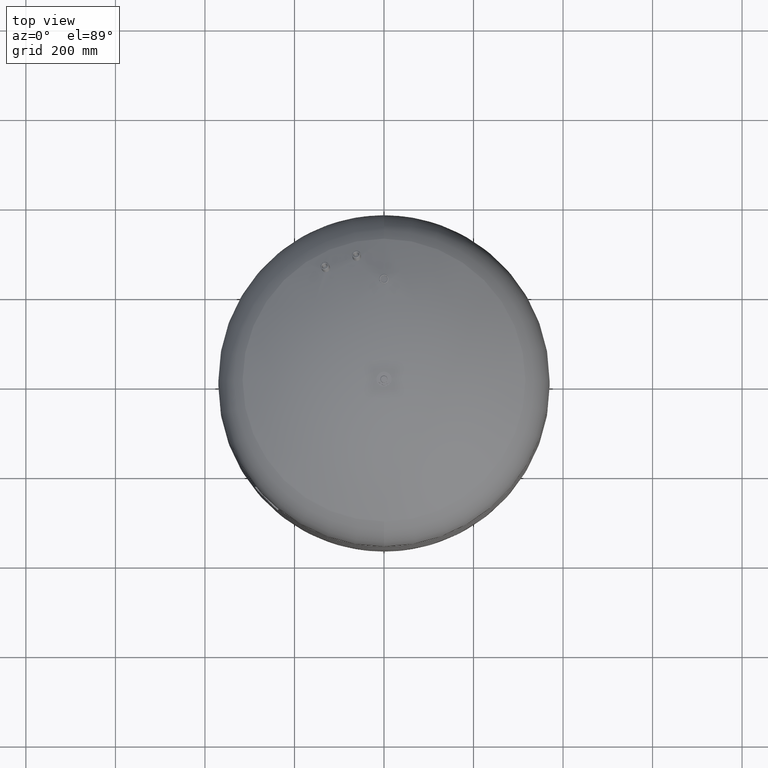
[diagram: clean part render]
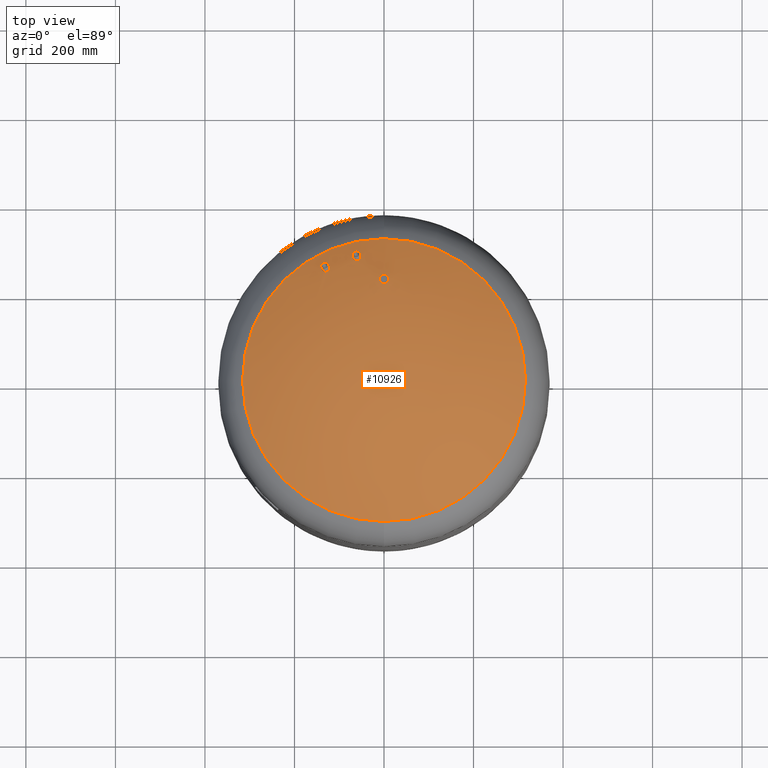
[diagram: same view with one face highlighted and labeled with its STEP entity id]
A machine part, top view. The second image highlights one B-rep face of the part: STEP entity #10926.
In plain terms, the highlighted spherical surface has radius 594 mm.
Its self-contained STEP definition (entity closure, byte-faithful):
#10110=CARTESIAN_POINT('',(-2.602824E-014,235.650000000000180,1171.256891290701600));
#10111=VERTEX_POINT('',#10110);
#10127=CARTESIAN_POINT('',(-3.249803E-014,214.350000000000160,1179.976603747847800));
#10128=VERTEX_POINT('',#10127);
#10135=CARTESIAN_POINT('',(-3.249803E-014,214.350000000000160,1179.976603747847800));
#10136=CARTESIAN_POINT('',(0.666038043721410,214.350000000000160,1179.976603747847800));
#10137=CARTESIAN_POINT('',(1.352981525517916,214.413524354886020,1179.950805071053100));
#10138=CARTESIAN_POINT('',(2.715272904608481,214.678598997980660,1179.843128376147000));
#10139=CARTESIAN_POINT('',(3.390634926952958,214.880086805006700,1179.761275260714000));
#10140=CARTESIAN_POINT('',(4.681630125253175,215.408785958660050,1179.546416626549900));
#10141=CARTESIAN_POINT('',(5.298427974080205,215.736445102668090,1179.413227623191500));
#10142=CARTESIAN_POINT('',(6.435759363091345,216.487198478308700,1179.107911251760500));
#10143=CARTESIAN_POINT('',(6.956285137066915,216.910302070195940,1178.935777970266600));
#10144=CARTESIAN_POINT('',(7.916960179157471,217.842409028087250,1178.556361428415100));
#10145=CARTESIAN_POINT('',(8.381739947968098,218.390323388397350,1178.333224298921800));
#10146=CARTESIAN_POINT('',(9.195451719827602,219.579201430897460,1177.848707115749900));
#10147=CARTESIAN_POINT('',(9.544466567579486,220.220115776826730,1177.587345140520000));
#10148=CARTESIAN_POINT('',(10.102417011131195,221.552493042210590,1177.043582261240300));
#10149=CARTESIAN_POINT('',(10.311753669868759,222.244873077360270,1176.760805702338500));
#10150=CARTESIAN_POINT('',(10.585573976371812,223.633028276844750,1176.193416225719600));
#10151=CARTESIAN_POINT('',(10.649999999999977,224.328813015859680,1175.908798925370500));
#10152=CARTESIAN_POINT('',(10.649999999999975,225.671786479226000,1175.359034886973600));
#10153=CARTESIAN_POINT('',(10.585460400361917,226.368024347549920,1175.073808877052400));
#10154=CARTESIAN_POINT('',(10.311329103602359,227.756801518715060,1174.504419187062000));
#10155=CARTESIAN_POINT('',(10.101797465229037,228.449351105819910,1174.220251677453700));
#10156=CARTESIAN_POINT('',(9.543479918171299,229.781874594479230,1173.673085682405800));
#10157=CARTESIAN_POINT('',(9.194296297222152,230.422762135664810,1173.409713356434200));
#10158=CARTESIAN_POINT('',(8.380292790655219,231.611514676519110,1172.920886082800300));
#10159=CARTESIAN_POINT('',(7.915389535509958,232.159331565944850,1172.695452971786800));
#10160=CARTESIAN_POINT('',(6.954812378860631,233.090927368555900,1172.311901637632900));
#10161=CARTESIAN_POINT('',(6.434542270618381,233.513694356713440,1172.137747219150700));
#10162=CARTESIAN_POINT('',(5.297695199627204,234.263949017529820,1171.828566804858600));
#10163=CARTESIAN_POINT('',(4.681124878051838,234.591446061424450,1171.693539129926400));
#10164=CARTESIAN_POINT('',(3.390484354499036,235.119949738899090,1171.475583316135300));
#10165=CARTESIAN_POINT('',(2.715246130797892,235.321404190540730,1171.392472082369500));
#10166=CARTESIAN_POINT('',(1.353068081394607,235.586460824110730,1171.283112812980600));
#10167=CARTESIAN_POINT('',(0.666113868125016,235.650000000000180,1171.256891290701600));
#10168=CARTESIAN_POINT('',(-2.602824E-014,235.650000000000180,1171.256891290701600));
#10169=B_SPLINE_CURVE_WITH_KNOTS('',3,(#10135,#10136,#10137,#10138,#10139,#10140,#10141,#10142,#10143,#10144,#10145,#10146,#10147,#10148,#10149,#10150,#10151,#10152,#10153,#10154,#10155,#10156,#10157,#10158,#10159,#10160,#10161,#10162,#10163,#10164,#10165,#10166,#10167,#10168),.UNSPECIFIED.,.F.,.U.,(4,2,2,2,2,2,2,2,2,2,2,2,2,2,2,2,4),(33.399548099509303,35.397662230673632,37.395776361837967,39.393890493002303,41.392004624166631,43.567748596373889,45.743492568581139,47.919236540788390,50.094980512995647,52.272667830126260,54.450355147256872,56.628042464387491,58.805729781518103,60.804071385893224,62.802412990268351,64.800754594643479,66.799096199018607),.UNSPECIFIED.);
#10170=EDGE_CURVE('',#10128,#10111,#10169,.T.);
#10324=CARTESIAN_POINT('',(-129.243551924768920,257.524553273751340,1145.435471206024200));
#10325=VERTEX_POINT('',#10324);
#10341=CARTESIAN_POINT('',(-130.137349046490210,240.741521569716100,1153.203746359460200));
#10342=VERTEX_POINT('',#10341);
#10349=CARTESIAN_POINT('',(-130.137349046490210,240.741521569716100,1153.203746359460200));
#10350=CARTESIAN_POINT('',(-129.571386774364560,240.769566917004080,1153.330644452726100));
#10351=CARTESIAN_POINT('',(-128.983368624156180,240.848956547617890,1153.438566269858300));
#10352=CARTESIAN_POINT('',(-127.807631295279950,241.118935185915090,1153.601401550465200));
#10353=CARTESIAN_POINT('',(-127.219905058204020,241.309479578009960,1153.656338017429100));
#10354=CARTESIAN_POINT('',(-126.086363301858470,241.792593358846600,1153.707258821884100));
#10355=CARTESIAN_POINT('',(-125.539642565455280,242.085548611231450,1153.703283797784900));
#10356=CARTESIAN_POINT('',(-124.522014237761940,242.750400108272570,1153.638969040643100));
#10357=CARTESIAN_POINT('',(-124.051132232967380,243.122333203697560,1153.578605415600800));
#10358=CARTESIAN_POINT('',(-123.210600896812420,243.907122624122680,1153.413311371378300));
#10359=CARTESIAN_POINT('',(-122.812319327467660,244.346801409583460,1153.302707925460300));
#10360=CARTESIAN_POINT('',(-122.101095121742960,245.296425052045320,1153.026903819878000));
#10361=CARTESIAN_POINT('',(-121.788112285879660,245.806345995712090,1152.861724489986000));
#10362=CARTESIAN_POINT('',(-121.272868172967250,246.863070067758030,1152.486369092597700));
#10363=CARTESIAN_POINT('',(-121.070195937609000,247.410715286423600,1152.275893979412600));
#10364=CARTESIAN_POINT('',(-120.784318141678130,248.505806093199880,1151.825430913872400));
#10365=CARTESIAN_POINT('',(-120.701160539569060,249.053258054910090,1151.585428021449600));
#10366=CARTESIAN_POINT('',(-120.645048880344060,250.106955699581420,1151.097725076235700));
#10367=CARTESIAN_POINT('',(-120.670229904334580,250.649211513011350,1150.833344722289000));
#10368=CARTESIAN_POINT('',(-120.840789002522460,251.721871315924860,1150.280435038444900));
#10369=CARTESIAN_POINT('',(-120.986117486582800,252.252286717004520,1149.991912551202900));
#10370=CARTESIAN_POINT('',(-121.391321718333760,253.263320454263780,1149.410182095705300));
#10371=CARTESIAN_POINT('',(-121.651519210126610,253.744741707722800,1149.116512152680100));
#10372=CARTESIAN_POINT('',(-122.265024945730990,254.628476341610370,1148.543753257280500));
#10373=CARTESIAN_POINT('',(-122.618376009204780,255.030761752403690,1148.264667016394200));
#10374=CARTESIAN_POINT('',(-123.379272435740210,255.735907670427080,1147.740393491655400));
#10375=CARTESIAN_POINT('',(-123.812782571223150,256.062928762060040,1147.477269161481700));
#10376=CARTESIAN_POINT('',(-124.764552987364750,256.630088900802600,1146.971376041888100));
#10377=CARTESIAN_POINT('',(-125.282783676294060,256.870267406416930,1146.728595818036000));
#10378=CARTESIAN_POINT('',(-126.370651287798070,257.243350340047240,1146.281364133556300));
#10379=CARTESIAN_POINT('',(-126.941154008583540,257.376551332503140,1146.076556928055900));
#10380=CARTESIAN_POINT('',(-128.094477587199070,257.531209120771900,1145.717088388904800));
#10381=CARTESIAN_POINT('',(-128.677310565932770,257.552619713672190,1145.562446067612000));
#10382=CARTESIAN_POINT('',(-129.243551924768950,257.524553273751390,1145.435471206024200));
#10383=B_SPLINE_CURVE_WITH_KNOTS('',3,(#10349,#10350,#10351,#10352,#10353,#10354,#10355,#10356,#10357,#10358,#10359,#10360,#10361,#10362,#10363,#10364,#10365,#10366,#10367,#10368,#10369,#10370,#10371,#10372,#10373,#10374,#10375,#10376,#10377,#10378,#10379,#10380,#10381,#10382),.UNSPECIFIED.,.F.,.U.,(4,2,2,2,2,2,2,2,2,2,2,2,2,2,2,2,4),(27.889433803625138,29.631509189318301,31.373584575011460,33.115659960704619,34.857735346397781,36.600969895663752,38.344204444929716,40.087438994195686,41.830673543461657,43.574777903323429,45.318882263185202,47.062986623046967,48.807090982908740,50.550035776307269,52.292980569705804,54.035925363104333,55.778870156502862),.UNSPECIFIED.);
#10384=EDGE_CURVE('',#10342,#10325,#10383,.T.);
#10538=CARTESIAN_POINT('',(-60.560413270180014,282.420371123089750,1145.044478170456200));
#10539=VERTEX_POINT('',#10538);
#10555=CARTESIAN_POINT('',(-61.021542538394044,266.000390834510140,1153.594696165648200));
#10556=VERTEX_POINT('',#10555);
#10563=CARTESIAN_POINT('',(-61.021542538394044,266.000390834510140,1153.594696165648200));
#10564=CARTESIAN_POINT('',(-60.444129108849737,266.014861339862820,1153.654184061000300));
#10565=CARTESIAN_POINT('',(-59.845598976412980,266.079131115946380,1153.690032735532400));
#10566=CARTESIAN_POINT('',(-58.651894747790116,266.316597542579250,1153.704268976979200));
#10567=CARTESIAN_POINT('',(-58.056712180494713,266.489750165257530,1153.682680601858500));
#10568=CARTESIAN_POINT('',(-56.911947054418022,266.936924105322420,1153.581357717630000));
#10569=CARTESIAN_POINT('',(-56.361450517579229,267.211302325794520,1153.501542368086800));
#10570=CARTESIAN_POINT('',(-55.340043680273439,267.839072869071690,1153.291267712546900));
#10571=CARTESIAN_POINT('',(-54.869160415287425,268.192501711393220,1153.160786113287900));
#10572=CARTESIAN_POINT('',(-54.031733711652173,268.941849853380060,1152.865439190341000));
#10573=CARTESIAN_POINT('',(-53.636680597366002,269.363421373885160,1152.690445034688800));
#10574=CARTESIAN_POINT('',(-52.935651428895603,270.277362354312000,1152.293012852329400));
#10575=CARTESIAN_POINT('',(-52.629633559242890,270.769707404207570,1152.070592451782700));
#10576=CARTESIAN_POINT('',(-52.131699579442653,271.793084706193100,1151.592224089893500));
#10577=CARTESIAN_POINT('',(-51.939386893679192,272.324931290633630,1151.335895498049200));
#10578=CARTESIAN_POINT('',(-51.676803241198854,273.391195433439580,1150.807710955472000));
#10579=CARTESIAN_POINT('',(-51.606581599614515,273.925620376317570,1150.535845391645100));
#10580=CARTESIAN_POINT('',(-51.577630837887014,274.956540412332000,1149.999033318480800));
#10581=CARTESIAN_POINT('',(-51.617939637560966,275.488281033322950,1149.715730840659700));
#10582=CARTESIAN_POINT('',(-51.821024371048381,276.542964293886090,1149.139505047911800));
#10583=CARTESIAN_POINT('',(-51.983750138670082,277.065916916403520,1148.846582325654700));
#10584=CARTESIAN_POINT('',(-52.424907097296611,278.065710236248440,1148.271453510026000));
#10585=CARTESIAN_POINT('',(-52.703688859869459,278.543345093747400,1147.988790567862000));
#10586=CARTESIAN_POINT('',(-53.354295994765039,279.423277123357650,1147.452128861795000));
#10587=CARTESIAN_POINT('',(-53.726164539467433,279.825547794527440,1147.198138985972000));
#10588=CARTESIAN_POINT('',(-54.522505748464781,280.533794574606990,1146.734504134924700));
#10589=CARTESIAN_POINT('',(-54.974111036777671,280.864049968091590,1146.508984716566100));
#10590=CARTESIAN_POINT('',(-55.961545208142141,281.441413951665480,1146.091729015408900));
#10591=CARTESIAN_POINT('',(-56.497344996806021,281.688560415460980,1145.899976288878200));
#10592=CARTESIAN_POINT('',(-57.618549752325400,282.078961360517040,1145.565147684108800));
#10593=CARTESIAN_POINT('',(-58.204848320907487,282.222526661987440,1145.421805139650100));
#10594=CARTESIAN_POINT('',(-59.386993872410116,282.400493089443100,1145.191214332163300));
#10595=CARTESIAN_POINT('',(-59.982851939369411,282.434849377331830,1145.103988290003800));
#10596=CARTESIAN_POINT('',(-60.560413270180014,282.420371123089750,1145.044478170456200));
#10597=B_SPLINE_CURVE_WITH_KNOTS('',3,(#10563,#10564,#10565,#10566,#10567,#10568,#10569,#10570,#10571,#10572,#10573,#10574,#10575,#10576,#10577,#10578,#10579,#10580,#10581,#10582,#10583,#10584,#10585,#10586,#10587,#10588,#10589,#10590,#10591,#10592,#10593,#10594,#10595,#10596),.UNSPECIFIED.,.F.,.U.,(4,2,2,2,2,2,2,2,2,2,2,2,2,2,2,2,4),(27.889434749710926,29.631384882329606,31.373335014948282,33.115285147566958,34.857235280185634,36.601016540085894,38.344797799986161,40.088579059886428,41.832360319786687,43.576588982808254,45.320817645829820,47.065046308851386,48.809274971872952,50.551673745173630,52.294072518474309,54.036471291774987,55.778870065075665),.UNSPECIFIED.);
#10598=EDGE_CURVE('',#10556,#10539,#10597,.T.);
#10699=CARTESIAN_POINT('',(-4.983290E-014,-315.931034482758610,1129.014494274920300));
#10700=VERTEX_POINT('',#10699);
#10716=CARTESIAN_POINT('',(6.623700E-014,315.931034482758610,1129.014494274920300));
#10717=VERTEX_POINT('',#10716);
#10725=CARTESIAN_POINT('',(315.931034482758610,-3.869039E-014,1129.014494274920500));
#10726=VERTEX_POINT('',#10725);
#10727=CARTESIAN_POINT('',(-1.114251E-014,1.577722E-030,1129.014494274920500));
#10728=DIRECTION('',(0.0,0.0,-1.0));
#10729=DIRECTION('',(1.0,0.0,0.0));
#10730=AXIS2_PLACEMENT_3D('',#10727,#10728,#10729);
#10731=CIRCLE('',#10730,315.931034482758610);
#10732=EDGE_CURVE('',#10717,#10726,#10731,.T.);
#10734=CARTESIAN_POINT('',(-1.114251E-014,1.577722E-030,1129.014494274920500));
#10735=DIRECTION('',(0.0,0.0,-1.0));
#10736=DIRECTION('',(1.0,0.0,0.0));
#10737=AXIS2_PLACEMENT_3D('',#10734,#10735,#10736);
#10738=CIRCLE('',#10737,315.931034482758610);
#10739=EDGE_CURVE('',#10726,#10700,#10738,.T.);
#10790=CARTESIAN_POINT('',(-7.274402E-014,1.262177E-029,626.0));
#10791=DIRECTION('',(0.0,-1.0,0.0));
#10792=DIRECTION('',(-1.0,0.0,0.0));
#10793=AXIS2_PLACEMENT_3D('',#10790,#10791,#10792);
#10794=SPHERICAL_SURFACE('',#10793,594.0);
#10795=ORIENTED_EDGE('',*,*,#10739,.F.);
#10796=ORIENTED_EDGE('',*,*,#10732,.F.);
#10797=CARTESIAN_POINT('',(-1.114251E-014,1.577722E-030,1129.014494274920500));
#10798=DIRECTION('',(0.0,0.0,-1.0));
#10799=DIRECTION('',(1.0,0.0,0.0));
#10800=AXIS2_PLACEMENT_3D('',#10797,#10798,#10799);
#10801=CIRCLE('',#10800,315.931034482758610);
#10802=EDGE_CURVE('',#10700,#10717,#10801,.T.);
#10803=ORIENTED_EDGE('',*,*,#10802,.F.);
#10804=EDGE_LOOP('',(#10795,#10796,#10803));
#10805=FACE_OUTER_BOUND('',#10804,.T.);
#10806=CARTESIAN_POINT('',(-60.560413270180035,282.420371123089860,1145.044478170456400));
#10807=CARTESIAN_POINT('',(-61.137826029646305,282.405896593220400,1144.984983359236800));
#10808=CARTESIAN_POINT('',(-61.736355814922241,282.341624282732940,1144.949130405896500));
#10809=CARTESIAN_POINT('',(-62.930060240218374,282.104156712187200,1144.934892510441200));
#10810=CARTESIAN_POINT('',(-63.525243352428703,281.931005485075730,1144.956483515700500));
#10811=CARTESIAN_POINT('',(-64.670010464865555,281.483838095288430,1145.057818376153800));
#10812=CARTESIAN_POINT('',(-65.220508437535528,281.209465034662680,1145.137643067884700));
#10813=CARTESIAN_POINT('',(-66.241918775973005,280.581707403618220,1145.347941233387200));
#10814=CARTESIAN_POINT('',(-66.712804102567816,280.228286298901030,1145.478436974426400));
#10815=CARTESIAN_POINT('',(-67.550234390484704,279.478955023463410,1145.773813687699200));
#10816=CARTESIAN_POINT('',(-67.945289287683437,279.057393331440610,1145.948824462713900));
#10817=CARTESIAN_POINT('',(-68.646322257937797,278.143472518106650,1146.346290757906900));
#10818=CARTESIAN_POINT('',(-68.952342145374644,277.651137790829520,1146.568728616944100));
#10819=CARTESIAN_POINT('',(-69.450279886180070,276.627779784542670,1147.047129435468800));
#10820=CARTESIAN_POINT('',(-69.642594337873746,276.095942174153320,1147.303473017204400));
#10821=CARTESIAN_POINT('',(-69.905180940125334,275.029693189560190,1147.831682396466900));
#10822=CARTESIAN_POINT('',(-69.975403770618328,274.495274420576270,1148.103557783877700));
#10823=CARTESIAN_POINT('',(-70.004352719910841,273.464490424693740,1148.640316992887400));
#10824=CARTESIAN_POINT('',(-69.964068205817838,272.932879489932190,1148.923554343642500));
#10825=CARTESIAN_POINT('',(-69.761087210689581,271.878434739394550,1149.499645337799600));
#10826=CARTESIAN_POINT('',(-69.598440845234208,271.355590949436530,1149.792498381701800));
#10827=CARTESIAN_POINT('',(-69.157491127192074,270.355980792873880,1150.367491497200000));
#10828=CARTESIAN_POINT('',(-68.878837543161509,269.878420737686950,1150.650088132829300));
#10829=CARTESIAN_POINT('',(-68.228524012141108,268.998595719929880,1151.186628952776100));
#10830=CARTESIAN_POINT('',(-67.856820949977447,268.596357231391950,1151.440564290563500));
#10831=CARTESIAN_POINT('',(-67.060632626549335,267.887953965887390,1151.904224330043500));
#10832=CARTESIAN_POINT('',(-66.608980042310634,267.557540075705390,1152.129810333588000));
#10833=CARTESIAN_POINT('',(-65.621406378754344,266.979892191542320,1152.547185906034200));
#10834=CARTESIAN_POINT('',(-65.085514440596626,266.732620296632720,1152.738991970897600));
#10835=CARTESIAN_POINT('',(-63.964092121196927,266.342014356588720,1153.073910272940600));
#10836=CARTESIAN_POINT('',(-63.377667605691968,266.198369204130700,1153.217289393750200));
#10837=CARTESIAN_POINT('',(-62.195251474024076,266.020296071122170,1153.447934422047900));
#10838=CARTESIAN_POINT('',(-61.599248761183233,265.985912991492630,1153.535178105334600));
#10839=CARTESIAN_POINT('',(-61.021542538394044,266.000390834510140,1153.594696165648200));
#10840=B_SPLINE_CURVE_WITH_KNOTS('',3,(#10806,#10807,#10808,#10809,#10810,#10811,#10812,#10813,#10814,#10815,#10816,#10817,#10818,#10819,#10820,#10821,#10822,#10823,#10824,#10825,#10826,#10827,#10828,#10829,#10830,#10831,#10832,#10833,#10834,#10835,#10836,#10837,#10838,#10839),.UNSPECIFIED.,.F.,.U.,(4,2,2,2,2,2,2,2,2,2,2,2,2,2,2,2,4),(0.0,1.741950560246490,3.483901120492980,5.225851680739471,6.967802240985961,8.711580908881125,10.455359576776290,12.199138244671456,13.942916912566620,15.686712935857864,17.430508959149108,19.174304982440354,20.918101005731600,22.660934441726432,24.403767877721265,26.146601313716097,27.889434749710926),.UNSPECIFIED.);
#10841=EDGE_CURVE('',#10539,#10556,#10840,.T.);
#10842=ORIENTED_EDGE('',*,*,#10841,.F.);
#10843=ORIENTED_EDGE('',*,*,#10598,.F.);
#10844=EDGE_LOOP('',(#10842,#10843));
#10845=FACE_BOUND('',#10844,.T.);
#10846=CARTESIAN_POINT('',(-129.243551924768950,257.524553273751390,1145.435471206024200));
#10847=CARTESIAN_POINT('',(-129.809510934773470,257.496500828792990,1145.308559658787100));
#10848=CARTESIAN_POINT('',(-130.397526110253750,257.417104741510290,1145.200625781133100));
#10849=CARTESIAN_POINT('',(-131.573258864935700,257.147116031219580,1145.037771948423100));
#10850=CARTESIAN_POINT('',(-132.160983508351190,256.956568035832730,1144.982829011507400));
#10851=CARTESIAN_POINT('',(-133.294523915524390,256.473450704290140,1144.931902281410700));
#10852=CARTESIAN_POINT('',(-133.841244888053720,256.180495506331060,1144.935877851962200));
#10853=CARTESIAN_POINT('',(-134.858875476999030,255.515647585112330,1145.000200363429500));
#10854=CARTESIAN_POINT('',(-135.329759502928280,255.143718003890970,1145.060571185205800));
#10855=CARTESIAN_POINT('',(-136.170295500716750,254.358938493606730,1145.225884064577000));
#10856=CARTESIAN_POINT('',(-136.568580049543020,253.919266481448430,1145.336499752418400));
#10857=CARTESIAN_POINT('',(-137.279811589062040,252.969658534232760,1145.612332526340400));
#10858=CARTESIAN_POINT('',(-137.592798774335760,252.459746501063730,1145.777528255672000));
#10859=CARTESIAN_POINT('',(-138.108052027658770,251.403040818453550,1146.152917698125300));
#10860=CARTESIAN_POINT('',(-138.310729068587420,250.855405080705990,1146.363410447025900));
#10861=CARTESIAN_POINT('',(-138.596615961813140,249.760332145049200,1146.813906780990000));
#10862=CARTESIAN_POINT('',(-138.679777852014500,249.212888558794080,1147.053925272698300));
#10863=CARTESIAN_POINT('',(-138.735896891344790,248.159204885361930,1147.541655031452600));
#10864=CARTESIAN_POINT('',(-138.710719132009530,247.616955239730630,1147.806047516581000));
#10865=CARTESIAN_POINT('',(-138.540165035474810,246.544305097911690,1148.358975844123500));
#10866=CARTESIAN_POINT('',(-138.394838291093490,246.013893177637780,1148.647504820460200));
#10867=CARTESIAN_POINT('',(-137.989635751914960,245.002862946644770,1149.229241126764900));
#10868=CARTESIAN_POINT('',(-137.729438240783000,244.521441705399870,1149.522910429986700));
#10869=CARTESIAN_POINT('',(-137.115930942902790,243.637703714648320,1150.095661274931000));
#10870=CARTESIAN_POINT('',(-136.762578347589970,243.235414935212730,1150.374740117734700));
#10871=CARTESIAN_POINT('',(-136.001677314388900,242.530259220748410,1150.898994731813700));
#10872=CARTESIAN_POINT('',(-135.568163743926930,242.203231443477140,1151.162106901077800));
#10873=CARTESIAN_POINT('',(-134.616385317770350,241.636055774329010,1151.667971462162300));
#10874=CARTESIAN_POINT('',(-134.098150064227580,241.395868431068380,1151.910735315911300));
#10875=CARTESIAN_POINT('',(-133.010272900902920,241.022767202369150,1152.357933026282400));
#10876=CARTESIAN_POINT('',(-132.439765207145430,240.889556737485780,1152.562722636736500));
#10877=CARTESIAN_POINT('',(-131.286432059450870,240.734881123602610,1152.922158000043700));
#10878=CARTESIAN_POINT('',(-130.703594493203810,240.713462190168260,1153.076784773772500));
#10879=CARTESIAN_POINT('',(-130.137349046490210,240.741521569716100,1153.203746359460200));
#10880=B_SPLINE_CURVE_WITH_KNOTS('',3,(#10846,#10847,#10848,#10849,#10850,#10851,#10852,#10853,#10854,#10855,#10856,#10857,#10858,#10859,#10860,#10861,#10862,#10863,#10864,#10865,#10866,#10867,#10868,#10869,#10870,#10871,#10872,#10873,#10874,#10875,#10876,#10877,#10878,#10879),.UNSPECIFIED.,.F.,.U.,(4,2,2,2,2,2,2,2,2,2,2,2,2,2,2,2,4),(0.0,1.742075696822753,3.484151393645507,5.226227090468260,6.968302787291013,8.711535100219452,10.454767413147890,12.197999726076329,13.941232039004767,15.685335461314201,17.429438883623636,19.173542305933069,20.917645728242505,22.660592747088163,24.403539765933822,26.146486784779480,27.889433803625138),.UNSPECIFIED.);
#10881=EDGE_CURVE('',#10325,#10342,#10880,.T.);
#10882=ORIENTED_EDGE('',*,*,#10881,.F.);
#10883=ORIENTED_EDGE('',*,*,#10384,.F.);
#10884=EDGE_LOOP('',(#10882,#10883));
#10885=FACE_BOUND('',#10884,.T.);
#10886=CARTESIAN_POINT('',(-2.602824E-014,235.650000000000180,1171.256891290701600));
#10887=CARTESIAN_POINT('',(-0.666113868125066,235.650000000000180,1171.256891290701600));
#10888=CARTESIAN_POINT('',(-1.353068081394652,235.586460824110730,1171.283112812980600));
#10889=CARTESIAN_POINT('',(-2.715246130797932,235.321404190540730,1171.392472082369500));
#10890=CARTESIAN_POINT('',(-3.390484354499083,235.119949738899150,1171.475583316135300));
#10891=CARTESIAN_POINT('',(-4.681124878051886,234.591446061424450,1171.693539129926400));
#10892=CARTESIAN_POINT('',(-5.297695199627238,234.263949017529880,1171.828566804858600));
#10893=CARTESIAN_POINT('',(-6.434542270618407,233.513694356713500,1172.137747219150700));
#10894=CARTESIAN_POINT('',(-6.954812378860680,233.090927368555920,1172.311901637632900));
#10895=CARTESIAN_POINT('',(-7.915389535510010,232.159331565944850,1172.695452971786800));
#10896=CARTESIAN_POINT('',(-8.380292790655293,231.611514676519110,1172.920886082800300));
#10897=CARTESIAN_POINT('',(-9.194296297222223,230.422762135664810,1173.409713356434200));
#10898=CARTESIAN_POINT('',(-9.543479918171364,229.781874594479180,1173.673085682405800));
#10899=CARTESIAN_POINT('',(-10.101797465229099,228.449351105819860,1174.220251677453700));
#10900=CARTESIAN_POINT('',(-10.311329103602421,227.756801518715060,1174.504419187062000));
#10901=CARTESIAN_POINT('',(-10.585460400361974,226.368024347549920,1175.073808877052400));
#10902=CARTESIAN_POINT('',(-10.650000000000032,225.671786479226000,1175.359034886973600));
#10903=CARTESIAN_POINT('',(-10.650000000000032,224.328813015859680,1175.908798925370500));
#10904=CARTESIAN_POINT('',(-10.585573976371871,223.633028276844780,1176.193416225719600));
#10905=CARTESIAN_POINT('',(-10.311753669868818,222.244873077360300,1176.760805702338500));
#10906=CARTESIAN_POINT('',(-10.102417011131251,221.552493042210590,1177.043582261240300));
#10907=CARTESIAN_POINT('',(-9.544466567579541,220.220115776826730,1177.587345140520000));
#10908=CARTESIAN_POINT('',(-9.195451719827659,219.579201430897460,1177.848707115749900));
#10909=CARTESIAN_POINT('',(-8.381739947968157,218.390323388397350,1178.333224298921800));
#10910=CARTESIAN_POINT('',(-7.916960179157535,217.842409028087250,1178.556361428415100));
#10911=CARTESIAN_POINT('',(-6.956285137066981,216.910302070195940,1178.935777970266600));
#10912=CARTESIAN_POINT('',(-6.435759363091423,216.487198478308670,1179.107911251760500));
#10913=CARTESIAN_POINT('',(-5.298427974080282,215.736445102668060,1179.413227623191500));
#10914=CARTESIAN_POINT('',(-4.681630125253232,215.408785958660080,1179.546416626549900));
#10915=CARTESIAN_POINT('',(-3.390634926953018,214.880086805006730,1179.761275260714000));
#10916=CARTESIAN_POINT('',(-2.715272904608545,214.678598997980660,1179.843128376147000));
#10917=CARTESIAN_POINT('',(-1.352981525517988,214.413524354886020,1179.950805071053100));
#10918=CARTESIAN_POINT('',(-0.666038043721476,214.350000000000160,1179.976603747847800));
#10919=CARTESIAN_POINT('',(-3.249803E-014,214.350000000000160,1179.976603747847800));
#10920=B_SPLINE_CURVE_WITH_KNOTS('',3,(#10886,#10887,#10888,#10889,#10890,#10891,#10892,#10893,#10894,#10895,#10896,#10897,#10898,#10899,#10900,#10901,#10902,#10903,#10904,#10905,#10906,#10907,#10908,#10909,#10910,#10911,#10912,#10913,#10914,#10915,#10916,#10917,#10918,#10919),.UNSPECIFIED.,.F.,.U.,(4,2,2,2,2,2,2,2,2,2,2,2,2,2,2,2,4),(0.0,1.998341604375121,3.996683208750242,5.995024813125363,7.993366417500484,10.171053734631105,12.348741051761724,14.526428368892345,16.704115686022966,18.879859658230217,21.055603630437471,23.231347602644725,25.407091574851975,27.405205706016307,29.403319837180639,31.401433968344971,33.399548099509303),.UNSPECIFIED.);
#10921=EDGE_CURVE('',#10111,#10128,#10920,.T.);
#10922=ORIENTED_EDGE('',*,*,#10921,.F.);
#10923=ORIENTED_EDGE('',*,*,#10170,.F.);
#10924=EDGE_LOOP('',(#10922,#10923));
#10925=FACE_BOUND('',#10924,.T.);
#10926=ADVANCED_FACE('',(#10805,#10845,#10885,#10925),#10794,.T.);